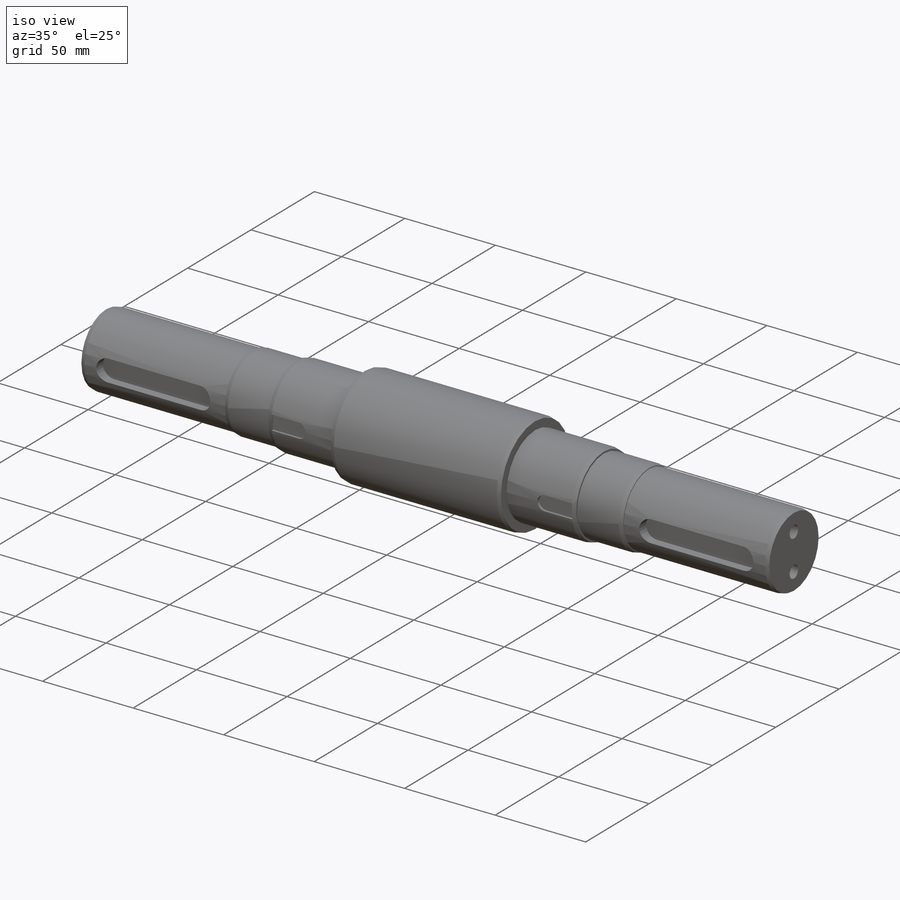
[diagram: iso view]
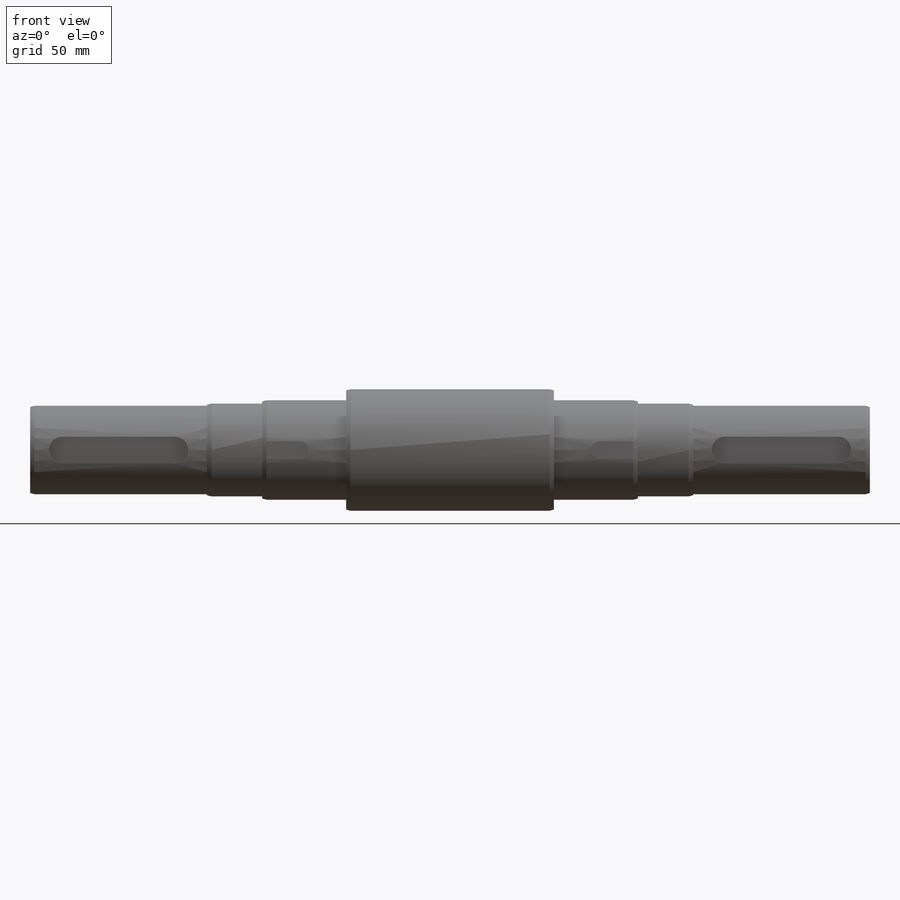
[diagram: front view]
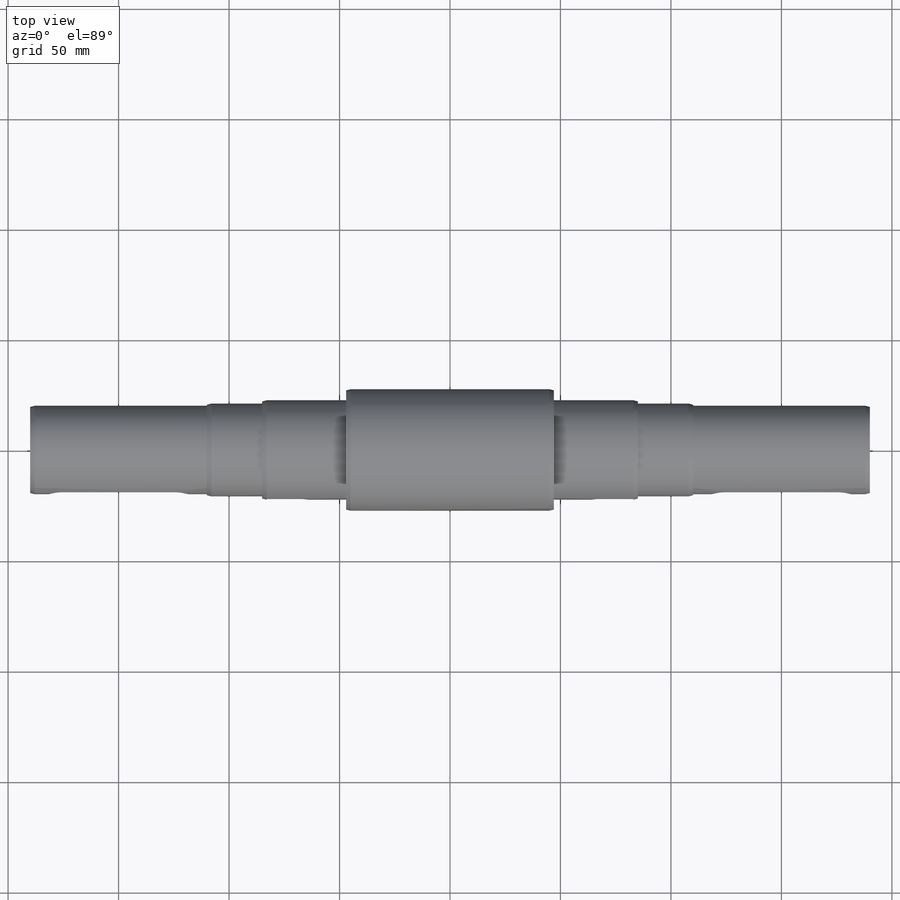
[diagram: top view]
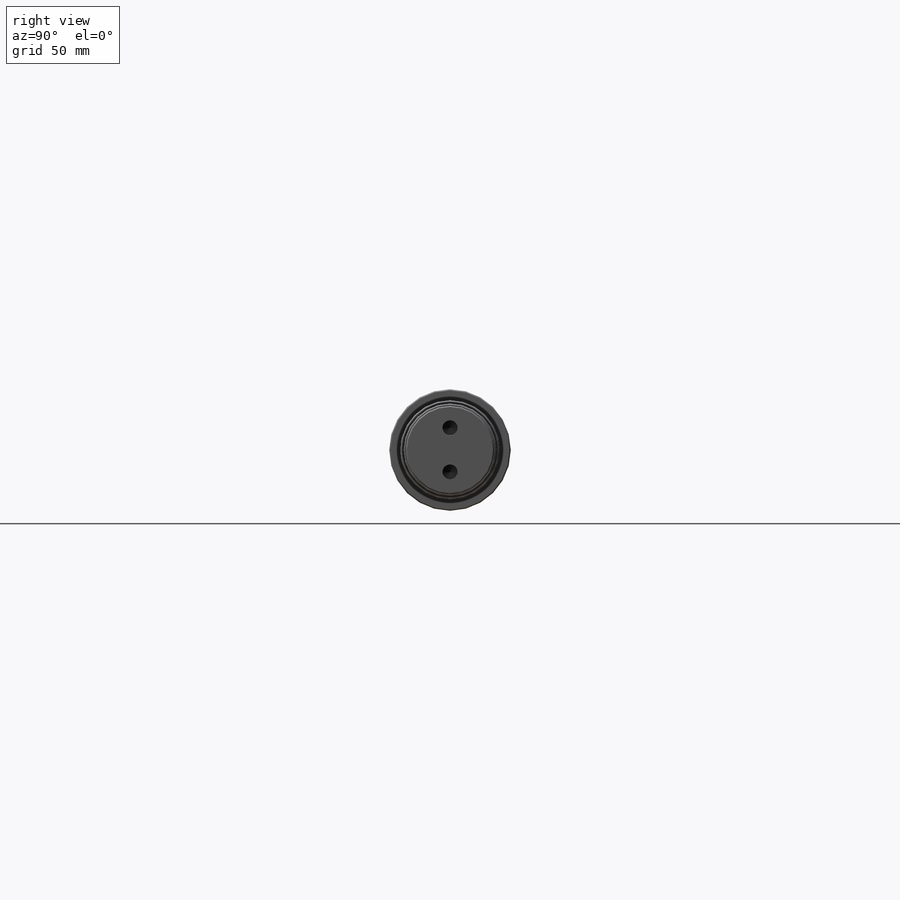
[diagram: right view]
SOLIDWORKS PART (.sldprt)
format: sldprt  version: not decoded by parser v0  size: 345,088 bytes
history: native  units: mm
features: sketch x6, plane x5, chamfer x2, cut_extrude x2, thread x2, material x1, revolve x1, hole x1, mirror x1 (+10 scaffold rows collapsed)
feature tree (31):
  scaffold x10  (default folders/planes/origin — collapsed)
  material  "Material <nicht festgelegt>"
  plane  "Ebene vorne"
  plane  "Ebene oben"
  plane  "Ebene rechts"
  sketch  "Skizze1"  dims[c1.D1=45.0mm c1.D2=40.0mm c1.D3=40.0mm c1.D4=40.0mm c2.D3=42.0mm c2.D4=55.0mm c2.D5=45.0mm c2.D6=10.0mm c2.D7=190.0mm c2.D8=80.0mm c2.D9=25.0mm c2.D10=~47.873891mm c2.D1=23.0mm c3.D10=15.0mm c3.D11=37.0mm c3.D5=55.0mm]
  revolve  "Rotation1"  Angle=360deg
  chamfer  "Fase1"  Distance=2mm Angle=15deg
  plane  "Ebene1"
  sketch  "Skizze2"  dims[c1.D1=6.0mm c1.D4=6.0mm c1.D5=6.0mm c1.D6=6.0mm c1.D2=12.0mm c1.D3=6.0mm c2.D5=51.0mm c2.D6=14.5mm]
  cut_extrude  "Schnitt-Linear austragen1"  Depth=5.5mm
  plane  "Ebene2"
  sketch  "Skizze3"  dims[D1=10.0mm D2=10.0mm]
  hole  "M8 Gewindebohrung1"  Diameter=6.8mm Depth=20mm
  sketch  "Skizze7"
  sketch  "Skizze6"  dims[hole-wizard template sketch: 46 standard entries collapsed; hole parameters kept: c15.Bohrerdurchmesser=6.8mm c15.Bohrungstiefe=20.0mm c15.D3=~14.816244mm c15.Spitzenwinkel=118.0deg]
  thread  "Bohrungsgewinde3"  Diameter=15mm  [1 undecoded]
  thread  "Bohrungsgewinde4"  Diameter=15mm  [1 undecoded]
  chamfer  "Fase2"  Distance=2mm Angle=15deg
  sketch  "Skizze8"  dims[c1.D1=8.0mm c1.D2=8.0mm c2.D2=90.0deg c3.D2=~2.899858mm c3.D1=8.0mm c4.D2=15.0mm]
  cut_extrude  "Schnitt-Linear austragen2"  Depth=1.5mm
  mirror  "Spiegeln1"
decode coverage: 13 of 15 modeling features carry decoded parameters
note: ~ marks probable driven/reference dimensions
note: 2 parameter values undecoded
note: suppression state not decoded; provenance and decode notes live in map.json
